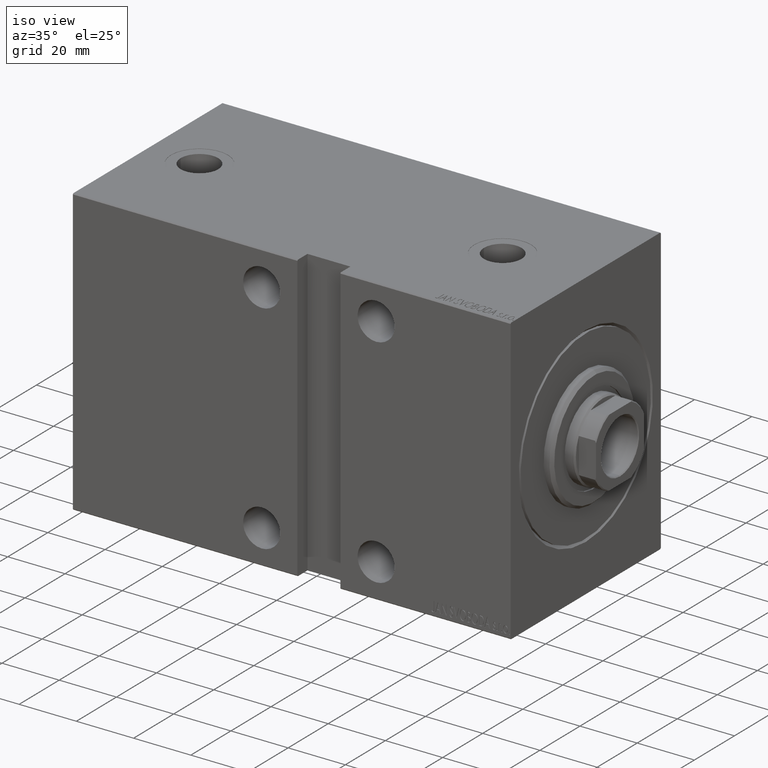
[diagram: clean part render]
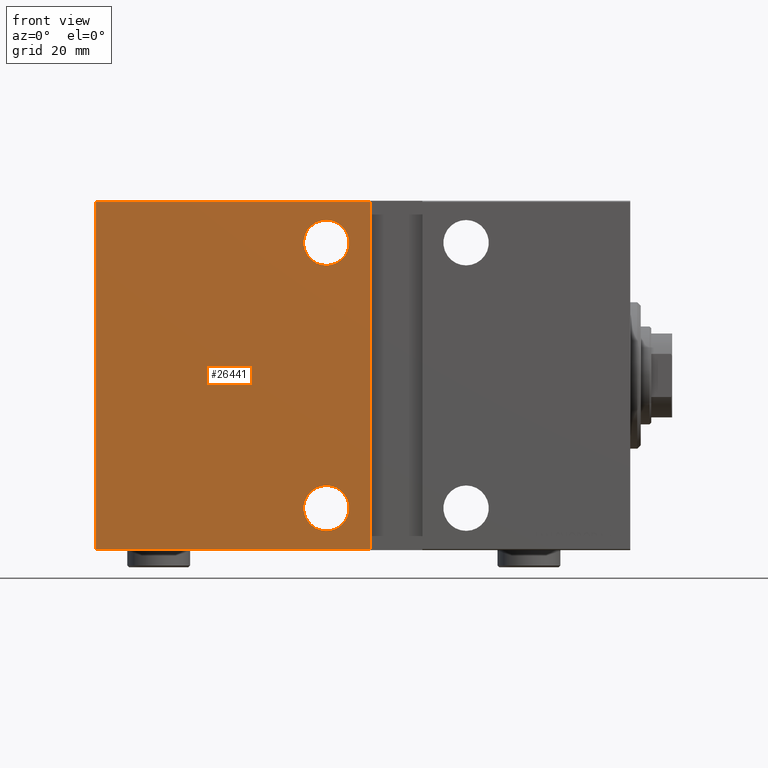
[diagram: tour spotlight — one face highlighted and labeled with its STEP entity id]
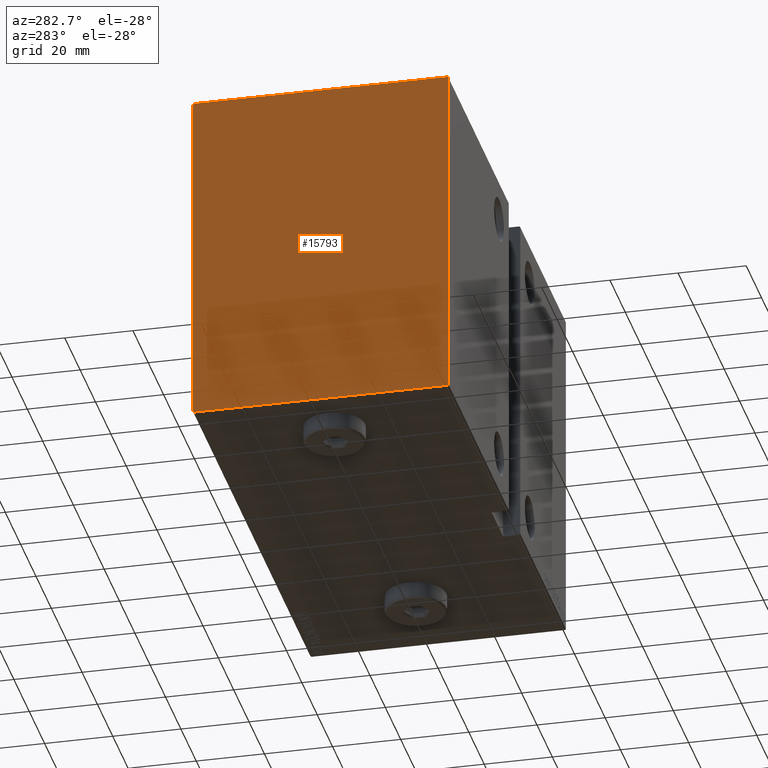
[diagram: tour spotlight — one face highlighted and labeled with its STEP entity id]
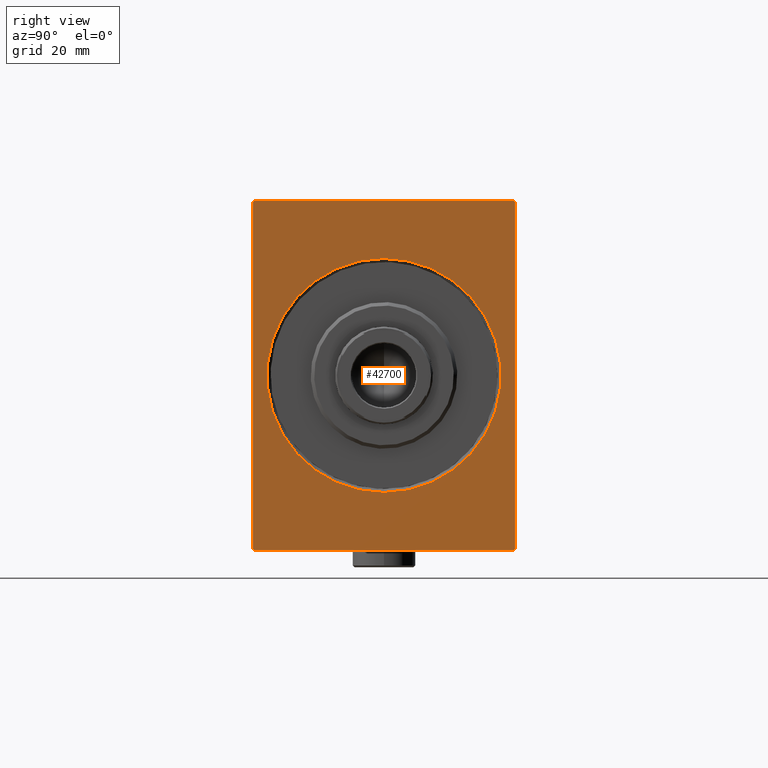
[diagram: tour spotlight — one face highlighted and labeled with its STEP entity id]
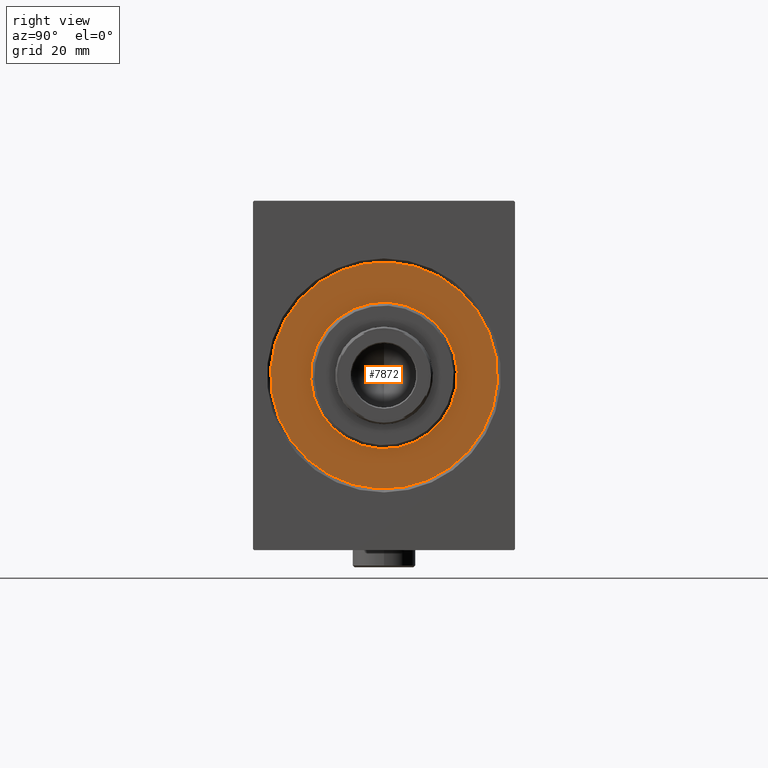
[diagram: tour spotlight — one face highlighted and labeled with its STEP entity id]
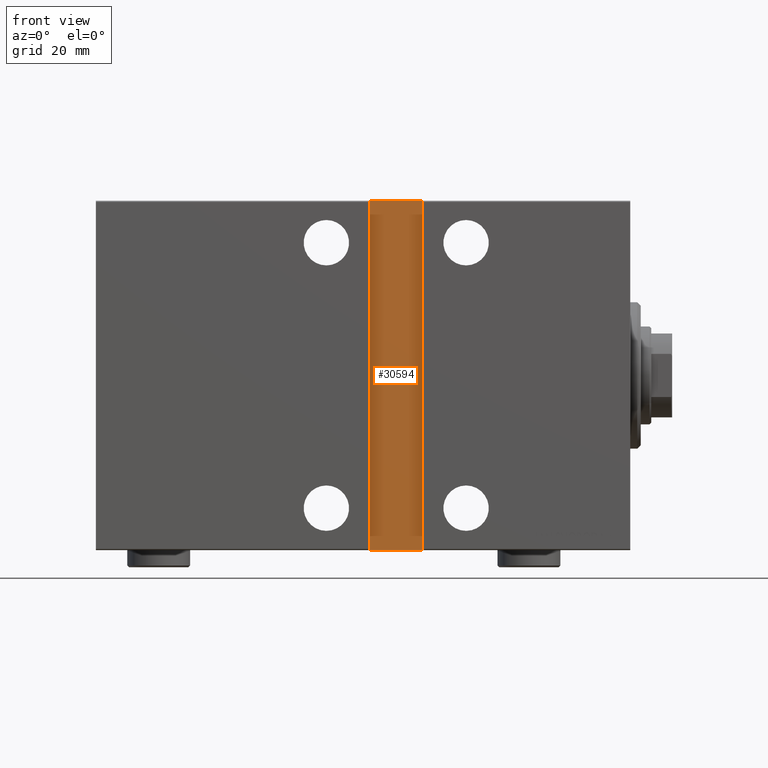
[diagram: tour spotlight — one face highlighted and labeled with its STEP entity id]
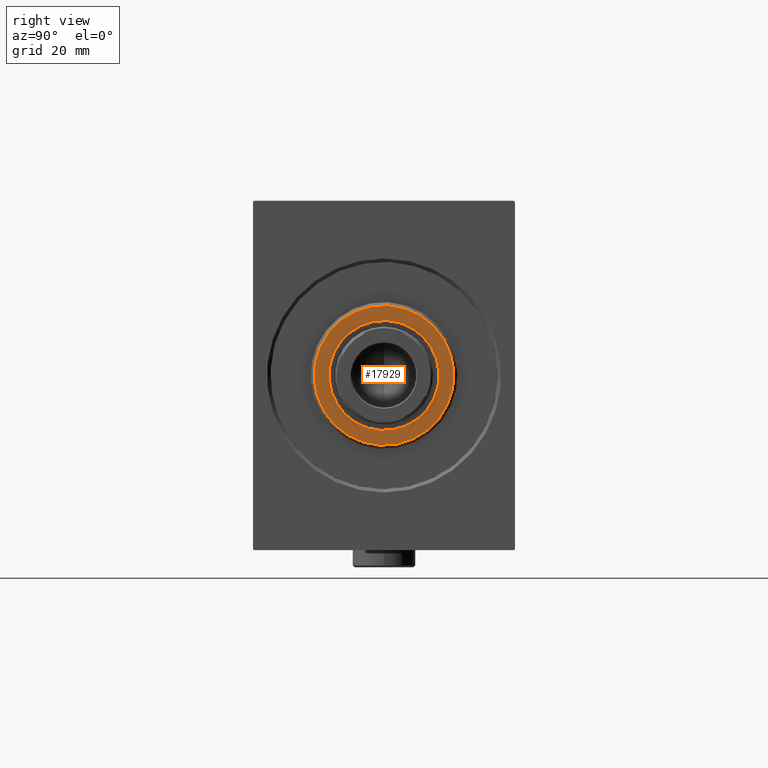
[diagram: tour spotlight — one face highlighted and labeled with its STEP entity id]
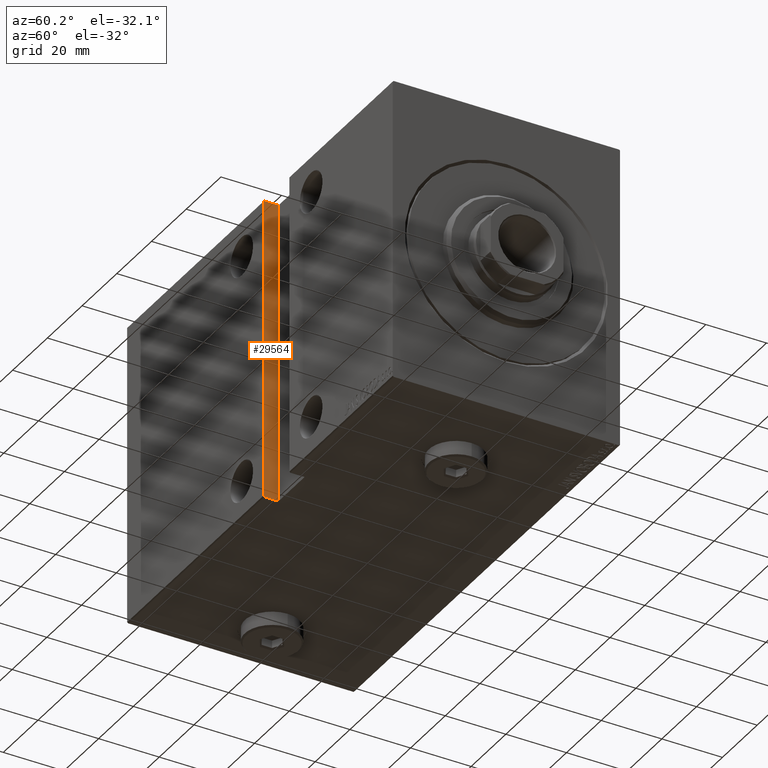
[diagram: tour spotlight — one face highlighted and labeled with its STEP entity id]
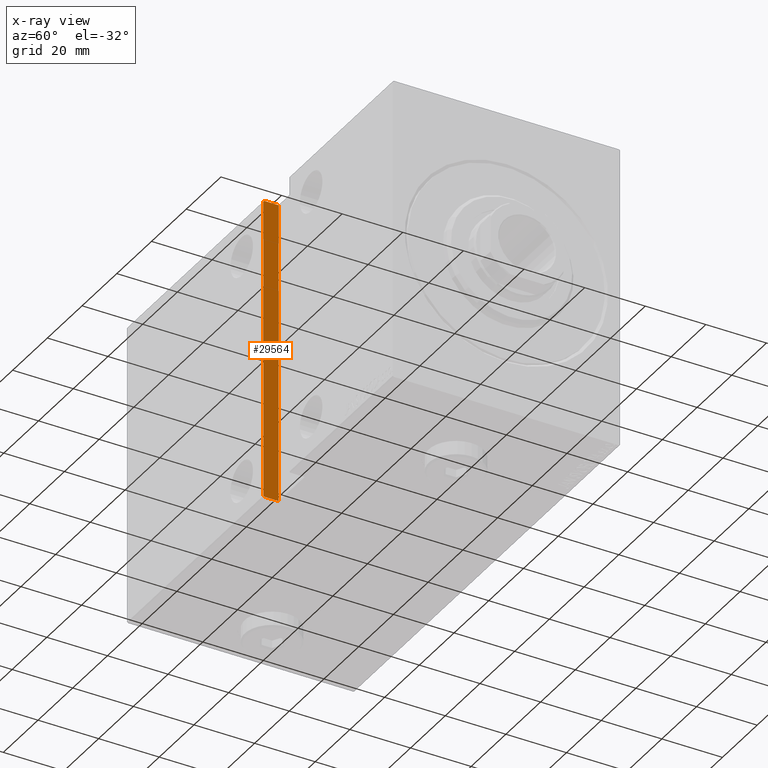
[diagram: x-ray of the same camera — body ghosted, this tour face saturated]
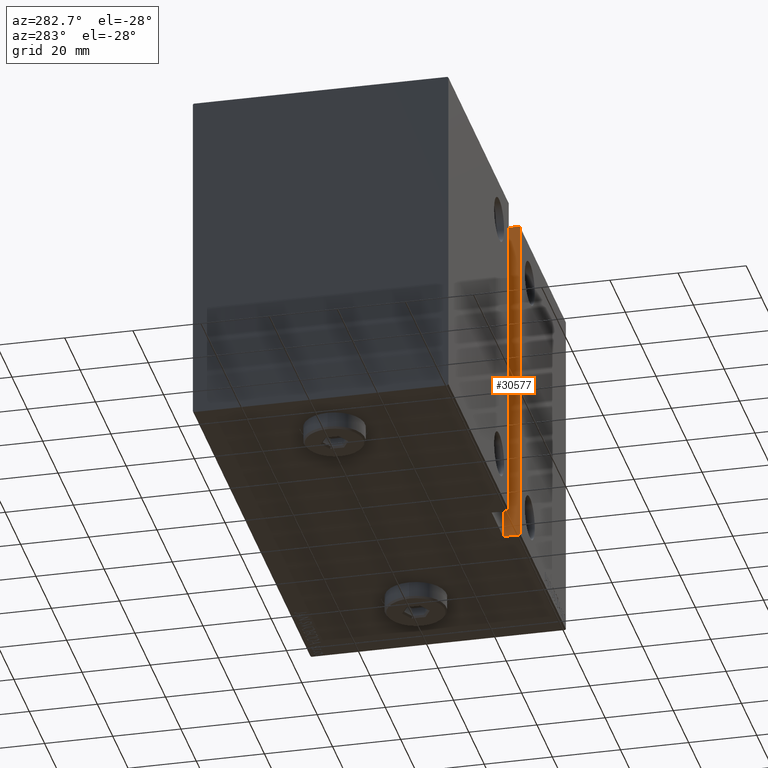
[diagram: tour spotlight — one face highlighted and labeled with its STEP entity id]
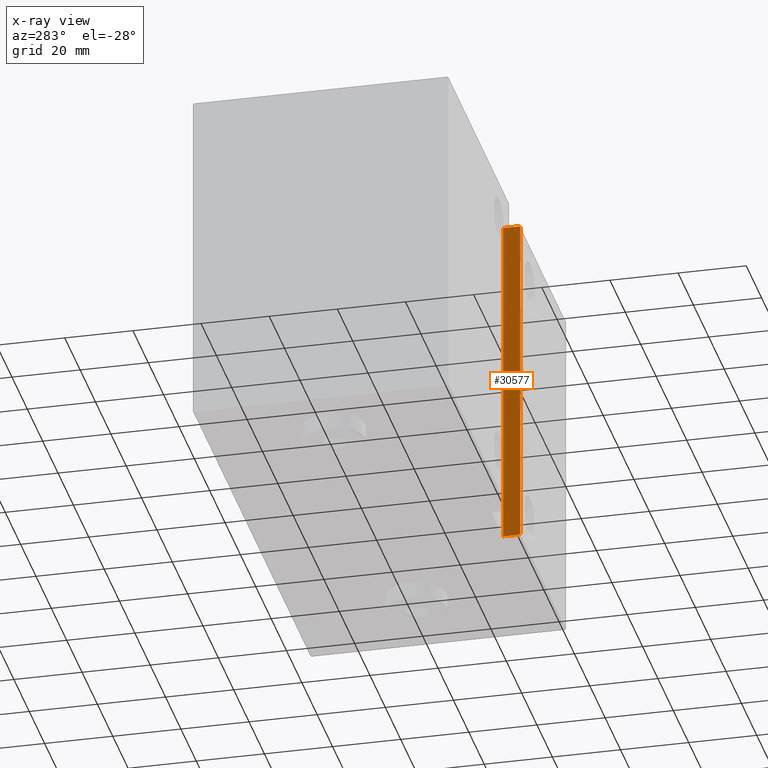
[diagram: x-ray of the same camera — body ghosted, this tour face saturated]
A machine part: a face-by-face anatomy tour. The part has 912 B-rep faces; the first image is the clean iso view, then the 8 largest visible faces are spotlighted one at a time (largest first), each with its STEP entity span.

Face 1 — front view, entity #26441. In plain terms, the highlighted planar face has unit normal (-0, 1, -0).
Definition (entity closure, byte-faithful):
#235 = DIRECTION ( 'NONE',  ( 0.000000000000000000, 1.000000000000000000, 0.000000000000000000 ) ) ;
#1767 = VERTEX_POINT ( 'NONE', #2426 ) ;
#2204 = DIRECTION ( 'NONE',  ( 0.000000000000000000, 1.387778780781445676E-16, -1.000000000000000000 ) ) ;
#2426 = CARTESIAN_POINT ( 'NONE',  ( 87.00000000000000000, 37.50000000000004263, 31.50000000000000000 ) ) ;
#3161 = DIRECTION ( 'NONE',  ( 0.000000000000000000, 0.000000000000000000, 1.000000000000000000 ) ) ;
#3342 = CIRCLE ( 'NONE', #43357, 6.500000000000005329 ) ;
#3765 = VERTEX_POINT ( 'NONE', #21574 ) ;
#4729 = CARTESIAN_POINT ( 'NONE',  ( 87.00000000000000000, 37.50000000000004263, -31.49999999999998579 ) ) ;
#4821 = DIRECTION ( 'NONE',  ( -1.000000000000000000, 0.000000000000000000, 0.000000000000000000 ) ) ;
#5173 = ORIENTED_EDGE ( 'NONE', *, *, #12529, .F. ) ;
#5368 = VECTOR ( 'NONE', #34100, 1000.000000000000000 ) ;
#5575 = CARTESIAN_POINT ( 'NONE',  ( 153.0000000000000000, 37.50000000000002132, -50.00000000000000000 ) ) ;
#5718 = EDGE_CURVE ( 'NONE', #19455, #3765, #37118, .T. ) ;
#7052 = EDGE_CURVE ( 'NONE', #15029, #34014, #26712, .T. ) ;
#9425 = EDGE_CURVE ( 'NONE', #15029, #3765, #16498, .T. ) ;
#9878 = EDGE_LOOP ( 'NONE', ( #5173, #30183 ) ) ;
#10892 = AXIS2_PLACEMENT_3D ( 'NONE', #41508, #235, #3161 ) ;
#11639 = AXIS2_PLACEMENT_3D ( 'NONE', #22802, #40082, #22355 ) ;
#11688 = EDGE_LOOP ( 'NONE', ( #43781, #23371 ) ) ;
#12323 = FACE_OUTER_BOUND ( 'NONE', #31589, .T. ) ;
#12529 = EDGE_CURVE ( 'NONE', #17453, #1767, #19422, .T. ) ;
#14060 = CARTESIAN_POINT ( 'NONE',  ( 74.50000000000002842, 37.50000000000001421, 49.70000000000003837 ) ) ;
#14303 = EDGE_CURVE ( 'NONE', #24757, #15332, #24476, .T. ) ;
#14711 = EDGE_CURVE ( 'NONE', #15332, #24757, #30938, .T. ) ;
#15029 = VERTEX_POINT ( 'NONE', #14060 ) ;
#15332 = VERTEX_POINT ( 'NONE', #4729 ) ;
#15681 = FACE_BOUND ( 'NONE', #9878, .T. ) ;
#16498 = LINE ( 'NONE', #20747, #25480 ) ;
#17282 = AXIS2_PLACEMENT_3D ( 'NONE', #24250, #23806, #26957 ) ;
#17453 = VERTEX_POINT ( 'NONE', #38107 ) ;
#18724 = CARTESIAN_POINT ( 'NONE',  ( 153.0000000000000000, 37.50000000000002132, -49.69999999999998153 ) ) ;
#19217 = DIRECTION ( 'NONE',  ( 0.000000000000000000, 0.000000000000000000, 1.000000000000000000 ) ) ;
#19265 = DIRECTION ( 'NONE',  ( 0.000000000000000000, -1.000000000000000000, -1.387778780781445676E-16 ) ) ;
#19422 = CIRCLE ( 'NONE', #17282, 6.500000000000005329 ) ;
#19455 = VERTEX_POINT ( 'NONE', #30441 ) ;
#19864 = DIRECTION ( 'NONE',  ( 0.000000000000000000, -1.387778780781445676E-16, 1.000000000000000000 ) ) ;
#20026 = ORIENTED_EDGE ( 'NONE', *, *, #5718, .F. ) ;
#20747 = CARTESIAN_POINT ( 'NONE',  ( 153.0000000000000000, 37.50000000000000711, 49.70000000000003837 ) ) ;
#21574 = CARTESIAN_POINT ( 'NONE',  ( 153.0000000000000000, 37.50000000000000711, 49.70000000000003837 ) ) ;
#21727 = CARTESIAN_POINT ( 'NONE',  ( 87.00000000000000000, 37.50000000000004263, -44.50000000000000000 ) ) ;
#22355 = DIRECTION ( 'NONE',  ( 0.000000000000000000, 0.000000000000000000, 1.000000000000000000 ) ) ;
#22444 = CARTESIAN_POINT ( 'NONE',  ( 74.50000000000001421, 37.50000000000001421, -49.69999999999998153 ) ) ;
#22617 = PLANE ( 'NONE',  #31130 ) ;
#22802 = CARTESIAN_POINT ( 'NONE',  ( 87.00000000000000000, 37.50000000000004263, -37.99999999999999289 ) ) ;
#23371 = ORIENTED_EDGE ( 'NONE', *, *, #14303, .F. ) ;
#23806 = DIRECTION ( 'NONE',  ( 0.000000000000000000, 1.000000000000000000, 0.000000000000000000 ) ) ;
#24141 = ORIENTED_EDGE ( 'NONE', *, *, #9425, .T. ) ;
#24250 = CARTESIAN_POINT ( 'NONE',  ( 87.00000000000000000, 37.50000000000004263, 38.00000000000000711 ) ) ;
#24476 = CIRCLE ( 'NONE', #10892, 6.500000000000005329 ) ;
#24757 = VERTEX_POINT ( 'NONE', #21727 ) ;
#25480 = VECTOR ( 'NONE', #44304, 1000.000000000000000 ) ;
#26441 = ADVANCED_FACE ( 'NONE', ( #36518, #15681, #12323 ), #22617, .F. ) ;
#26712 = LINE ( 'NONE', #40175, #5368 ) ;
#26817 = VECTOR ( 'NONE', #19864, 1000.000000000000000 ) ;
#26957 = DIRECTION ( 'NONE',  ( 0.000000000000000000, 0.000000000000000000, 1.000000000000000000 ) ) ;
#27180 = EDGE_CURVE ( 'NONE', #19455, #34014, #31962, .T. ) ;
#27469 = CARTESIAN_POINT ( 'NONE',  ( 153.0000000000000000, 37.50000000000002132, -50.00000000000000000 ) ) ;
#29743 = CARTESIAN_POINT ( 'NONE',  ( 87.00000000000000000, 37.50000000000004263, 38.00000000000000711 ) ) ;
#30183 = ORIENTED_EDGE ( 'NONE', *, *, #30541, .F. ) ;
#30441 = CARTESIAN_POINT ( 'NONE',  ( 153.0000000000000000, 37.50000000000002132, -49.69999999999998153 ) ) ;
#30541 = EDGE_CURVE ( 'NONE', #1767, #17453, #3342, .T. ) ;
#30864 = ORIENTED_EDGE ( 'NONE', *, *, #7052, .F. ) ;
#30938 = CIRCLE ( 'NONE', #11639, 6.500000000000005329 ) ;
#31130 = AXIS2_PLACEMENT_3D ( 'NONE', #5575, #19265, #2204 ) ;
#31589 = EDGE_LOOP ( 'NONE', ( #20026, #41612, #30864, #24141 ) ) ;
#31962 = LINE ( 'NONE', #18724, #43363 ) ;
#34014 = VERTEX_POINT ( 'NONE', #22444 ) ;
#34100 = DIRECTION ( 'NONE',  ( -1.387778780781445676E-16, 0.000000000000000000, -1.000000000000000000 ) ) ;
#35812 = DIRECTION ( 'NONE',  ( 0.000000000000000000, 1.000000000000000000, 0.000000000000000000 ) ) ;
#36518 = FACE_BOUND ( 'NONE', #11688, .T. ) ;
#37118 = LINE ( 'NONE', #27469, #26817 ) ;
#38107 = CARTESIAN_POINT ( 'NONE',  ( 87.00000000000000000, 37.50000000000004263, 44.50000000000001421 ) ) ;
#40082 = DIRECTION ( 'NONE',  ( 0.000000000000000000, 1.000000000000000000, 0.000000000000000000 ) ) ;
#40175 = CARTESIAN_POINT ( 'NONE',  ( 74.50000000000002842, 37.50000000000001421, 50.00000000000000000 ) ) ;
#41508 = CARTESIAN_POINT ( 'NONE',  ( 87.00000000000000000, 37.50000000000004263, -37.99999999999999289 ) ) ;
#41612 = ORIENTED_EDGE ( 'NONE', *, *, #27180, .T. ) ;
#43357 = AXIS2_PLACEMENT_3D ( 'NONE', #29743, #35812, #19217 ) ;
#43363 = VECTOR ( 'NONE', #4821, 1000.000000000000000 ) ;
#43781 = ORIENTED_EDGE ( 'NONE', *, *, #14711, .F. ) ;
#44304 = DIRECTION ( 'NONE',  ( 1.000000000000000000, 0.000000000000000000, 0.000000000000000000 ) ) ;

Face 2 — auxiliary view, entity #15793. In plain terms, the highlighted planar face has unit normal (-1, -0, 0).
Definition (entity closure, byte-faithful):
#973 = ORIENTED_EDGE ( 'NONE', *, *, #33320, .T. ) ;
#2558 = ORIENTED_EDGE ( 'NONE', *, *, #39098, .T. ) ;
#3020 = CARTESIAN_POINT ( 'NONE',  ( 153.0000000000000000, -37.19999999999996732, -50.00000000000000000 ) ) ;
#3189 = ORIENTED_EDGE ( 'NONE', *, *, #41125, .T. ) ;
#3362 = VECTOR ( 'NONE', #14427, 1000.000000000000114 ) ;
#3765 = VERTEX_POINT ( 'NONE', #21574 ) ;
#3927 = LINE ( 'NONE', #4820, #10686 ) ;
#4820 = CARTESIAN_POINT ( 'NONE',  ( 153.0000000000000000, 37.50000000000000711, 50.00000000000000000 ) ) ;
#5288 = DIRECTION ( 'NONE',  ( 0.000000000000000000, 1.000000000000000000, 0.000000000000000000 ) ) ;
#5445 = VECTOR ( 'NONE', #5288, 1000.000000000000000 ) ;
#5718 = EDGE_CURVE ( 'NONE', #19455, #3765, #37118, .T. ) ;
#6320 = DIRECTION ( 'NONE',  ( -0.000000000000000000, 0.7071067811865474617, 0.7071067811865474617 ) ) ;
#6764 = LINE ( 'NONE', #37255, #36460 ) ;
#7450 = EDGE_LOOP ( 'NONE', ( #973, #15769, #9357, #25147, #3189, #25135, #2558, #39485 ) ) ;
#7930 = VERTEX_POINT ( 'NONE', #13719 ) ;
#8178 = CARTESIAN_POINT ( 'NONE',  ( 153.0000000000000000, -37.49999999999999289, 49.69999999999998153 ) ) ;
#8455 = LINE ( 'NONE', #29070, #5445 ) ;
#9082 = VECTOR ( 'NONE', #37076, 1000.000000000000114 ) ;
#9357 = ORIENTED_EDGE ( 'NONE', *, *, #5718, .T. ) ;
#9468 = CARTESIAN_POINT ( 'NONE',  ( 153.0000000000000000, 43.60000000000000142, -43.60000000000000142 ) ) ;
#9469 = DIRECTION ( 'NONE',  ( -0.000000000000000000, -0.7071067811865802133, 0.7071067811865149322 ) ) ;
#10514 = CARTESIAN_POINT ( 'NONE',  ( 153.0000000000000000, -37.49999999999999289, -49.69999999999998153 ) ) ;
#10686 = VECTOR ( 'NONE', #17624, 1000.000000000000000 ) ;
#11421 = CARTESIAN_POINT ( 'NONE',  ( 153.0000000000000000, -37.49999999999999289, 50.00000000000000000 ) ) ;
#11565 = AXIS2_PLACEMENT_3D ( 'NONE', #31084, #20562, #44122 ) ;
#13402 = PLANE ( 'NONE',  #11565 ) ;
#13719 = CARTESIAN_POINT ( 'NONE',  ( 153.0000000000000000, 37.19999999999999574, -50.00000000000000000 ) ) ;
#14427 = DIRECTION ( 'NONE',  ( -0.000000000000000000, 0.7071067811865474617, -0.7071067811865474617 ) ) ;
#15769 = ORIENTED_EDGE ( 'NONE', *, *, #40961, .T. ) ;
#15793 = ADVANCED_FACE ( 'NONE', ( #44336 ), #13402, .T. ) ;
#17624 = DIRECTION ( 'NONE',  ( 0.000000000000000000, -1.000000000000000000, 0.000000000000000000 ) ) ;
#17953 = CARTESIAN_POINT ( 'NONE',  ( 153.0000000000000000, -37.19999999999996732, 50.00000000000000000 ) ) ;
#19455 = VERTEX_POINT ( 'NONE', #30441 ) ;
#19679 = VERTEX_POINT ( 'NONE', #3020 ) ;
#19864 = DIRECTION ( 'NONE',  ( 0.000000000000000000, -1.387778780781445676E-16, 1.000000000000000000 ) ) ;
#20562 = DIRECTION ( 'NONE',  ( 1.000000000000000000, 0.000000000000000000, 0.000000000000000000 ) ) ;
#20714 = VERTEX_POINT ( 'NONE', #8178 ) ;
#21574 = CARTESIAN_POINT ( 'NONE',  ( 153.0000000000000000, 37.50000000000000711, 49.70000000000003837 ) ) ;
#21776 = VERTEX_POINT ( 'NONE', #10514 ) ;
#23476 = VECTOR ( 'NONE', #36272, 1000.000000000000000 ) ;
#24982 = VECTOR ( 'NONE', #6320, 1000.000000000000114 ) ;
#25135 = ORIENTED_EDGE ( 'NONE', *, *, #34620, .T. ) ;
#25147 = ORIENTED_EDGE ( 'NONE', *, *, #42629, .T. ) ;
#26290 = LINE ( 'NONE', #9468, #24982 ) ;
#26817 = VECTOR ( 'NONE', #19864, 1000.000000000000000 ) ;
#27469 = CARTESIAN_POINT ( 'NONE',  ( 153.0000000000000000, 37.50000000000002132, -50.00000000000000000 ) ) ;
#28273 = VERTEX_POINT ( 'NONE', #44113 ) ;
#29070 = CARTESIAN_POINT ( 'NONE',  ( 153.0000000000000000, -37.49999999999999289, -50.00000000000000000 ) ) ;
#30096 = VERTEX_POINT ( 'NONE', #17953 ) ;
#30350 = CARTESIAN_POINT ( 'NONE',  ( 153.0000000000000000, -43.59999999999998721, 43.59999999999998721 ) ) ;
#30441 = CARTESIAN_POINT ( 'NONE',  ( 153.0000000000000000, 37.50000000000002132, -49.69999999999998153 ) ) ;
#30576 = LINE ( 'NONE', #31458, #3362 ) ;
#31084 = CARTESIAN_POINT ( 'NONE',  ( 153.0000000000000000, 0.000000000000000000, 0.000000000000000000 ) ) ;
#31458 = CARTESIAN_POINT ( 'NONE',  ( 153.0000000000000000, -43.59999999999998721, -43.59999999999998721 ) ) ;
#33320 = EDGE_CURVE ( 'NONE', #19679, #7930, #8455, .T. ) ;
#33493 = LINE ( 'NONE', #30350, #9082 ) ;
#34620 = EDGE_CURVE ( 'NONE', #30096, #20714, #33493, .T. ) ;
#36052 = LINE ( 'NONE', #11421, #23476 ) ;
#36272 = DIRECTION ( 'NONE',  ( 0.000000000000000000, 0.000000000000000000, -1.000000000000000000 ) ) ;
#36305 = EDGE_CURVE ( 'NONE', #21776, #19679, #30576, .T. ) ;
#36460 = VECTOR ( 'NONE', #9469, 999.9999999999998863 ) ;
#37076 = DIRECTION ( 'NONE',  ( 0.000000000000000000, -0.7071067811865474617, -0.7071067811865474617 ) ) ;
#37118 = LINE ( 'NONE', #27469, #26817 ) ;
#37255 = CARTESIAN_POINT ( 'NONE',  ( 153.0000000000000000, 43.59999999999828901, 43.60000000000231779 ) ) ;
#39098 = EDGE_CURVE ( 'NONE', #20714, #21776, #36052, .T. ) ;
#39485 = ORIENTED_EDGE ( 'NONE', *, *, #36305, .T. ) ;
#40961 = EDGE_CURVE ( 'NONE', #7930, #19455, #26290, .T. ) ;
#41125 = EDGE_CURVE ( 'NONE', #28273, #30096, #3927, .T. ) ;
#42629 = EDGE_CURVE ( 'NONE', #3765, #28273, #6764, .T. ) ;
#44113 = CARTESIAN_POINT ( 'NONE',  ( 153.0000000000000000, 37.20000000000000995, 50.00000000000000000 ) ) ;
#44122 = DIRECTION ( 'NONE',  ( 0.000000000000000000, 0.000000000000000000, -1.000000000000000000 ) ) ;
#44336 = FACE_OUTER_BOUND ( 'NONE', #7450, .T. ) ;

Face 3 — right view, entity #42700. In plain terms, the highlighted planar face has unit normal (-1, -0, 0).
Definition (entity closure, byte-faithful):
#247 = EDGE_CURVE ( 'NONE', #32147, #7434, #18801, .T. ) ;
#928 = CARTESIAN_POINT ( 'NONE',  ( 0.000000000000000000, 37.20000000000000995, 50.00000000000000000 ) ) ;
#1451 = CARTESIAN_POINT ( 'NONE',  ( 0.000000000000000000, 4.102566777143633774E-15, -33.50000000000000000 ) ) ;
#2364 = DIRECTION ( 'NONE',  ( 0.000000000000000000, -1.000000000000000000, 0.000000000000000000 ) ) ;
#2584 = DIRECTION ( 'NONE',  ( -0.000000000000000000, 0.7071067811865474617, 0.7071067811865474617 ) ) ;
#3744 = DIRECTION ( 'NONE',  ( 0.000000000000000000, -0.7071067811865474617, -0.7071067811865474617 ) ) ;
#4470 = VECTOR ( 'NONE', #3744, 1000.000000000000114 ) ;
#4723 = EDGE_CURVE ( 'NONE', #22254, #9776, #43759, .T. ) ;
#5400 = DIRECTION ( 'NONE',  ( 0.000000000000000000, 0.000000000000000000, -1.000000000000000000 ) ) ;
#5424 = VECTOR ( 'NONE', #31140, 1000.000000000000000 ) ;
#5453 = DIRECTION ( 'NONE',  ( 1.000000000000000000, 0.000000000000000000, 0.000000000000000000 ) ) ;
#5707 = EDGE_CURVE ( 'NONE', #22212, #8717, #19636, .T. ) ;
#6432 = DIRECTION ( 'NONE',  ( 0.000000000000000000, 0.000000000000000000, -1.000000000000000000 ) ) ;
#6495 = LINE ( 'NONE', #30913, #5424 ) ;
#7434 = VERTEX_POINT ( 'NONE', #1451 ) ;
#7559 = ORIENTED_EDGE ( 'NONE', *, *, #35184, .F. ) ;
#8717 = VERTEX_POINT ( 'NONE', #40604 ) ;
#9002 = CARTESIAN_POINT ( 'NONE',  ( 0.000000000000000000, -37.49999999999999289, 50.00000000000000000 ) ) ;
#9617 = LINE ( 'NONE', #13864, #4470 ) ;
#9776 = VERTEX_POINT ( 'NONE', #20421 ) ;
#10370 = VECTOR ( 'NONE', #5400, 1000.000000000000000 ) ;
#10884 = CARTESIAN_POINT ( 'NONE',  ( 0.000000000000000000, 37.50000000000002132, -50.00000000000000000 ) ) ;
#11710 = VERTEX_POINT ( 'NONE', #27439 ) ;
#12019 = VERTEX_POINT ( 'NONE', #14992 ) ;
#12644 = CARTESIAN_POINT ( 'NONE',  ( 0.000000000000000000, 0.000000000000000000, 0.000000000000000000 ) ) ;
#12729 = FACE_OUTER_BOUND ( 'NONE', #32396, .T. ) ;
#12855 = CARTESIAN_POINT ( 'NONE',  ( 0.000000000000000000, -37.49999999999999289, 49.69999999999998153 ) ) ;
#12923 = CARTESIAN_POINT ( 'NONE',  ( 0.000000000000000000, 37.50000000000000711, 50.00000000000000000 ) ) ;
#13169 = PLANE ( 'NONE',  #17251 ) ;
#13502 = ORIENTED_EDGE ( 'NONE', *, *, #33622, .F. ) ;
#13864 = CARTESIAN_POINT ( 'NONE',  ( 0.000000000000000000, 37.50000000000002132, -49.69999999999998153 ) ) ;
#13965 = CARTESIAN_POINT ( 'NONE',  ( 0.000000000000000000, -37.19999999999996732, -50.00000000000000000 ) ) ;
#14029 = LINE ( 'NONE', #10884, #41984 ) ;
#14849 = LINE ( 'NONE', #928, #32353 ) ;
#14992 = CARTESIAN_POINT ( 'NONE',  ( 0.000000000000000000, 37.20000000000000995, 50.00000000000000000 ) ) ;
#17182 = EDGE_CURVE ( 'NONE', #12019, #34679, #14849, .T. ) ;
#17251 = AXIS2_PLACEMENT_3D ( 'NONE', #20113, #23022, #6432 ) ;
#17766 = DIRECTION ( 'NONE',  ( -0.000000000000000000, 0.7071067811865802133, -0.7071067811865149322 ) ) ;
#18218 = VECTOR ( 'NONE', #2584, 1000.000000000000114 ) ;
#18650 = EDGE_CURVE ( 'NONE', #28735, #11710, #9617, .T. ) ;
#18801 = CIRCLE ( 'NONE', #35970, 33.50000000000000000 ) ;
#19449 = FACE_BOUND ( 'NONE', #29107, .T. ) ;
#19636 = LINE ( 'NONE', #33313, #18218 ) ;
#20113 = CARTESIAN_POINT ( 'NONE',  ( 0.000000000000000000, 0.000000000000000000, 0.000000000000000000 ) ) ;
#20421 = CARTESIAN_POINT ( 'NONE',  ( 0.000000000000000000, -37.49999999999999289, -49.69999999999998153 ) ) ;
#21891 = DIRECTION ( 'NONE',  ( 1.000000000000000000, 0.000000000000000000, 0.000000000000000000 ) ) ;
#22212 = VERTEX_POINT ( 'NONE', #12855 ) ;
#22254 = VERTEX_POINT ( 'NONE', #13965 ) ;
#23022 = DIRECTION ( 'NONE',  ( 1.000000000000000000, 0.000000000000000000, 0.000000000000000000 ) ) ;
#23346 = DIRECTION ( 'NONE',  ( -0.000000000000000000, -0.7071067811865474617, 0.7071067811865474617 ) ) ;
#23566 = CARTESIAN_POINT ( 'NONE',  ( 0.000000000000000000, -37.19999999999996732, -50.00000000000000000 ) ) ;
#23685 = ORIENTED_EDGE ( 'NONE', *, *, #4723, .T. ) ;
#25256 = CARTESIAN_POINT ( 'NONE',  ( 0.000000000000000000, 0.000000000000000000, 0.000000000000000000 ) ) ;
#25315 = EDGE_CURVE ( 'NONE', #22212, #9776, #42423, .T. ) ;
#26420 = AXIS2_PLACEMENT_3D ( 'NONE', #25256, #21891, #35578 ) ;
#26509 = CARTESIAN_POINT ( 'NONE',  ( 0.000000000000000000, 0.000000000000000000, 33.50000000000000000 ) ) ;
#26593 = LINE ( 'NONE', #12923, #36276 ) ;
#27439 = CARTESIAN_POINT ( 'NONE',  ( 0.000000000000000000, 37.19999999999999574, -50.00000000000000000 ) ) ;
#28561 = CIRCLE ( 'NONE', #26420, 33.50000000000000000 ) ;
#28735 = VERTEX_POINT ( 'NONE', #39034 ) ;
#28949 = EDGE_CURVE ( 'NONE', #22254, #11710, #6495, .T. ) ;
#29107 = EDGE_LOOP ( 'NONE', ( #38714, #33994 ) ) ;
#30913 = CARTESIAN_POINT ( 'NONE',  ( 0.000000000000000000, -37.49999999999999289, -50.00000000000000000 ) ) ;
#31140 = DIRECTION ( 'NONE',  ( 0.000000000000000000, 1.000000000000000000, 0.000000000000000000 ) ) ;
#31673 = ORIENTED_EDGE ( 'NONE', *, *, #17182, .T. ) ;
#32147 = VERTEX_POINT ( 'NONE', #26509 ) ;
#32353 = VECTOR ( 'NONE', #17766, 999.9999999999998863 ) ;
#32396 = EDGE_LOOP ( 'NONE', ( #7559, #31673, #13502, #44009, #38394, #23685, #43556, #32470 ) ) ;
#32470 = ORIENTED_EDGE ( 'NONE', *, *, #5707, .T. ) ;
#33253 = DIRECTION ( 'NONE',  ( 0.000000000000000000, 0.000000000000000000, -1.000000000000000000 ) ) ;
#33313 = CARTESIAN_POINT ( 'NONE',  ( 0.000000000000000000, -37.49999999999999289, 49.69999999999998153 ) ) ;
#33622 = EDGE_CURVE ( 'NONE', #28735, #34679, #14029, .T. ) ;
#33994 = ORIENTED_EDGE ( 'NONE', *, *, #40568, .T. ) ;
#34679 = VERTEX_POINT ( 'NONE', #40676 ) ;
#35184 = EDGE_CURVE ( 'NONE', #12019, #8717, #26593, .T. ) ;
#35578 = DIRECTION ( 'NONE',  ( 0.000000000000000000, 0.000000000000000000, -1.000000000000000000 ) ) ;
#35970 = AXIS2_PLACEMENT_3D ( 'NONE', #12644, #5453, #33253 ) ;
#36276 = VECTOR ( 'NONE', #2364, 1000.000000000000000 ) ;
#37565 = DIRECTION ( 'NONE',  ( 0.000000000000000000, -1.387778780781445676E-16, 1.000000000000000000 ) ) ;
#38394 = ORIENTED_EDGE ( 'NONE', *, *, #28949, .F. ) ;
#38714 = ORIENTED_EDGE ( 'NONE', *, *, #247, .T. ) ;
#39034 = CARTESIAN_POINT ( 'NONE',  ( 0.000000000000000000, 37.50000000000002132, -49.69999999999998153 ) ) ;
#40568 = EDGE_CURVE ( 'NONE', #7434, #32147, #28561, .T. ) ;
#40604 = CARTESIAN_POINT ( 'NONE',  ( 0.000000000000000000, -37.19999999999996732, 50.00000000000000000 ) ) ;
#40676 = CARTESIAN_POINT ( 'NONE',  ( 0.000000000000000000, 37.50000000000000711, 49.70000000000003837 ) ) ;
#41984 = VECTOR ( 'NONE', #37565, 1000.000000000000000 ) ;
#42423 = LINE ( 'NONE', #9002, #10370 ) ;
#42700 = ADVANCED_FACE ( 'NONE', ( #19449, #12729 ), #13169, .F. ) ;
#43245 = VECTOR ( 'NONE', #23346, 1000.000000000000114 ) ;
#43556 = ORIENTED_EDGE ( 'NONE', *, *, #25315, .F. ) ;
#43759 = LINE ( 'NONE', #23566, #43245 ) ;
#44009 = ORIENTED_EDGE ( 'NONE', *, *, #18650, .T. ) ;

Face 4 — right view, entity #7872. In plain terms, the highlighted planar face has unit normal (-1, 0, 0).
Definition (entity closure, byte-faithful):
#498 = EDGE_CURVE ( 'NONE', #5314, #14985, #8066, .T. ) ;
#526 = DIRECTION ( 'NONE',  ( 0.000000000000000000, 0.000000000000000000, 1.000000000000000000 ) ) ;
#2716 = CARTESIAN_POINT ( 'NONE',  ( 0.000000000000000000, 0.000000000000000000, 0.000000000000000000 ) ) ;
#4110 = EDGE_LOOP ( 'NONE', ( #11994, #19603 ) ) ;
#4903 = VERTEX_POINT ( 'NONE', #22628 ) ;
#5314 = VERTEX_POINT ( 'NONE', #32893 ) ;
#6111 = VERTEX_POINT ( 'NONE', #28022 ) ;
#7872 = ADVANCED_FACE ( 'NONE', ( #23795, #37476 ), #26946, .F. ) ;
#8066 = CIRCLE ( 'NONE', #40308, 32.50000000000000000 ) ;
#9666 = DIRECTION ( 'NONE',  ( 0.000000000000000000, 0.000000000000000000, -1.000000000000000000 ) ) ;
#9912 = DIRECTION ( 'NONE',  ( -1.000000000000000000, 0.000000000000000000, 0.000000000000000000 ) ) ;
#10539 = DIRECTION ( 'NONE',  ( -1.000000000000000000, 0.000000000000000000, 0.000000000000000000 ) ) ;
#11994 = ORIENTED_EDGE ( 'NONE', *, *, #498, .F. ) ;
#14985 = VERTEX_POINT ( 'NONE', #44330 ) ;
#16093 = AXIS2_PLACEMENT_3D ( 'NONE', #2716, #9912, #30528 ) ;
#17804 = DIRECTION ( 'NONE',  ( -1.000000000000000000, 0.000000000000000000, 0.000000000000000000 ) ) ;
#17808 = DIRECTION ( 'NONE',  ( 0.000000000000000000, 0.000000000000000000, -1.000000000000000000 ) ) ;
#19603 = ORIENTED_EDGE ( 'NONE', *, *, #38323, .F. ) ;
#19749 = CARTESIAN_POINT ( 'NONE',  ( 0.000000000000000000, 0.000000000000000000, 0.000000000000000000 ) ) ;
#21388 = DIRECTION ( 'NONE',  ( 1.000000000000000000, -0.000000000000000000, 0.000000000000000000 ) ) ;
#22511 = EDGE_CURVE ( 'NONE', #6111, #4903, #39651, .T. ) ;
#22628 = CARTESIAN_POINT ( 'NONE',  ( 0.000000000000000000, 2.571758278209441661E-15, -21.00000000000000000 ) ) ;
#22960 = EDGE_LOOP ( 'NONE', ( #44129, #31801 ) ) ;
#23795 = FACE_BOUND ( 'NONE', #22960, .T. ) ;
#24304 = CARTESIAN_POINT ( 'NONE',  ( 0.000000000000000000, 0.000000000000000000, 0.000000000000000000 ) ) ;
#26946 = PLANE ( 'NONE',  #16093 ) ;
#28022 = CARTESIAN_POINT ( 'NONE',  ( 0.000000000000000000, 0.000000000000000000, 21.00000000000000000 ) ) ;
#29550 = EDGE_CURVE ( 'NONE', #4903, #6111, #39142, .T. ) ;
#30528 = DIRECTION ( 'NONE',  ( 0.000000000000000000, 0.000000000000000000, 1.000000000000000000 ) ) ;
#30699 = CARTESIAN_POINT ( 'NONE',  ( 0.000000000000000000, 0.000000000000000000, 0.000000000000000000 ) ) ;
#31801 = ORIENTED_EDGE ( 'NONE', *, *, #29550, .F. ) ;
#32479 = AXIS2_PLACEMENT_3D ( 'NONE', #19749, #33426, #9666 ) ;
#32670 = AXIS2_PLACEMENT_3D ( 'NONE', #24304, #21388, #17808 ) ;
#32793 = CIRCLE ( 'NONE', #40681, 32.50000000000000000 ) ;
#32893 = CARTESIAN_POINT ( 'NONE',  ( 0.000000000000000000, 0.000000000000000000, -32.50000000000000000 ) ) ;
#33426 = DIRECTION ( 'NONE',  ( 1.000000000000000000, -0.000000000000000000, 0.000000000000000000 ) ) ;
#37476 = FACE_OUTER_BOUND ( 'NONE', #4110, .T. ) ;
#38323 = EDGE_CURVE ( 'NONE', #14985, #5314, #32793, .T. ) ;
#39142 = CIRCLE ( 'NONE', #32670, 21.00000000000000000 ) ;
#39651 = CIRCLE ( 'NONE', #32479, 21.00000000000000000 ) ;
#40308 = AXIS2_PLACEMENT_3D ( 'NONE', #30699, #10539, #40812 ) ;
#40681 = AXIS2_PLACEMENT_3D ( 'NONE', #42231, #17804, #526 ) ;
#40812 = DIRECTION ( 'NONE',  ( 0.000000000000000000, 0.000000000000000000, 1.000000000000000000 ) ) ;
#42231 = CARTESIAN_POINT ( 'NONE',  ( 0.000000000000000000, 0.000000000000000000, 0.000000000000000000 ) ) ;
#44129 = ORIENTED_EDGE ( 'NONE', *, *, #22511, .F. ) ;
#44330 = CARTESIAN_POINT ( 'NONE',  ( 0.000000000000000000, 3.980102097228898626E-15, 32.50000000000000000 ) ) ;

Face 5 — front view, entity #30594. In plain terms, the highlighted planar face has unit normal (0, -1, -0).
Definition (entity closure, byte-faithful):
#970 = ORIENTED_EDGE ( 'NONE', *, *, #42131, .T. ) ;
#1725 = DIRECTION ( 'NONE',  ( -0.000000000000000000, 1.000000000000000000, 0.000000000000000000 ) ) ;
#1904 = CARTESIAN_POINT ( 'NONE',  ( 59.50000000000001421, 32.50000000000001421, 50.00000000000000000 ) ) ;
#2790 = VERTEX_POINT ( 'NONE', #42166 ) ;
#3778 = ORIENTED_EDGE ( 'NONE', *, *, #10234, .F. ) ;
#5430 = VECTOR ( 'NONE', #43864, 1000.000000000000000 ) ;
#6444 = CARTESIAN_POINT ( 'NONE',  ( 74.50000000000002842, 32.50000000000001421, 50.00000000000000000 ) ) ;
#6839 = AXIS2_PLACEMENT_3D ( 'NONE', #22565, #1725, #15417 ) ;
#7265 = VERTEX_POINT ( 'NONE', #13824 ) ;
#10234 = EDGE_CURVE ( 'NONE', #42282, #2790, #24121, .T. ) ;
#11916 = ORIENTED_EDGE ( 'NONE', *, *, #39332, .T. ) ;
#13824 = CARTESIAN_POINT ( 'NONE',  ( 74.50000000000002842, 32.50000000000001421, 50.00000000000000000 ) ) ;
#15417 = DIRECTION ( 'NONE',  ( 0.000000000000000000, -0.000000000000000000, 1.000000000000000000 ) ) ;
#17166 = EDGE_CURVE ( 'NONE', #38065, #42282, #28068, .T. ) ;
#17184 = LINE ( 'NONE', #20987, #43644 ) ;
#17951 = ORIENTED_EDGE ( 'NONE', *, *, #17166, .F. ) ;
#18436 = CARTESIAN_POINT ( 'NONE',  ( 59.50000000000001421, 32.50000000000001421, 50.00000000000000000 ) ) ;
#18781 = FACE_OUTER_BOUND ( 'NONE', #32188, .T. ) ;
#19382 = CARTESIAN_POINT ( 'NONE',  ( 59.50000000000000711, 32.50000000000001421, -50.00000000000000000 ) ) ;
#20660 = VECTOR ( 'NONE', #36489, 1000.000000000000000 ) ;
#20987 = CARTESIAN_POINT ( 'NONE',  ( 59.50000000000001421, 32.50000000000001421, 50.00000000000000000 ) ) ;
#21596 = VECTOR ( 'NONE', #28948, 1000.000000000000000 ) ;
#22565 = CARTESIAN_POINT ( 'NONE',  ( 0.000000000000000000, 32.50000000000001421, 0.000000000000000000 ) ) ;
#24121 = LINE ( 'NONE', #37799, #5430 ) ;
#28068 = LINE ( 'NONE', #18436, #21596 ) ;
#28948 = DIRECTION ( 'NONE',  ( -6.938893903907228378E-17, 0.000000000000000000, -1.000000000000000000 ) ) ;
#30594 = ADVANCED_FACE ( 'NONE', ( #18781 ), #32451, .T. ) ;
#31300 = DIRECTION ( 'NONE',  ( 1.000000000000000000, 0.000000000000000000, 0.000000000000000000 ) ) ;
#32188 = EDGE_LOOP ( 'NONE', ( #3778, #17951, #970, #11916 ) ) ;
#32451 = PLANE ( 'NONE',  #6839 ) ;
#36489 = DIRECTION ( 'NONE',  ( -1.387778780781445676E-16, 0.000000000000000000, -1.000000000000000000 ) ) ;
#37159 = LINE ( 'NONE', #6444, #20660 ) ;
#37799 = CARTESIAN_POINT ( 'NONE',  ( 59.50000000000000711, 32.50000000000001421, -50.00000000000000000 ) ) ;
#38065 = VERTEX_POINT ( 'NONE', #1904 ) ;
#39332 = EDGE_CURVE ( 'NONE', #7265, #2790, #37159, .T. ) ;
#42131 = EDGE_CURVE ( 'NONE', #38065, #7265, #17184, .T. ) ;
#42166 = CARTESIAN_POINT ( 'NONE',  ( 74.50000000000002842, 32.50000000000001421, -50.00000000000000000 ) ) ;
#42282 = VERTEX_POINT ( 'NONE', #19382 ) ;
#43644 = VECTOR ( 'NONE', #31300, 1000.000000000000000 ) ;
#43864 = DIRECTION ( 'NONE',  ( 1.000000000000000000, 0.000000000000000000, 0.000000000000000000 ) ) ;

Face 6 — right view, entity #17929. In plain terms, the highlighted planar face has unit normal (1, -0, -0).
Definition (entity closure, byte-faithful):
#12 = CARTESIAN_POINT ( 'NONE',  ( 3.000000000000000000, 1.928818708657081344E-15, 15.75000000000000000 ) ) ;
#467 = DIRECTION ( 'NONE',  ( 0.000000000000000000, 0.000000000000000000, -1.000000000000000000 ) ) ;
#1551 = CIRCLE ( 'NONE', #29462, 15.75000000000000000 ) ;
#2749 = DIRECTION ( 'NONE',  ( 0.000000000000000000, 0.000000000000000000, -1.000000000000000000 ) ) ;
#3798 = DIRECTION ( 'NONE',  ( 0.000000000000000000, 0.000000000000000000, -1.000000000000000000 ) ) ;
#4289 = VERTEX_POINT ( 'NONE', #24173 ) ;
#5218 = EDGE_LOOP ( 'NONE', ( #34631, #8226 ) ) ;
#5387 = DIRECTION ( 'NONE',  ( 0.000000000000000000, 0.000000000000000000, -1.000000000000000000 ) ) ;
#6128 = PLANE ( 'NONE',  #33050 ) ;
#7396 = CARTESIAN_POINT ( 'NONE',  ( 3.000000000000000000, 0.000000000000000000, 0.000000000000000000 ) ) ;
#8226 = ORIENTED_EDGE ( 'NONE', *, *, #25522, .F. ) ;
#9382 = CIRCLE ( 'NONE', #38730, 19.99999999999998934 ) ;
#12088 = VERTEX_POINT ( 'NONE', #13399 ) ;
#12381 = VERTEX_POINT ( 'NONE', #18472 ) ;
#13399 = CARTESIAN_POINT ( 'NONE',  ( 3.000000000000000000, 0.000000000000000000, -15.75000000000000000 ) ) ;
#13955 = AXIS2_PLACEMENT_3D ( 'NONE', #7396, #21075, #3798 ) ;
#14300 = VERTEX_POINT ( 'NONE', #12 ) ;
#14343 = EDGE_CURVE ( 'NONE', #12381, #4289, #21634, .T. ) ;
#15778 = FACE_OUTER_BOUND ( 'NONE', #32807, .T. ) ;
#16744 = ORIENTED_EDGE ( 'NONE', *, *, #14343, .T. ) ;
#17476 = EDGE_CURVE ( 'NONE', #12088, #14300, #1551, .T. ) ;
#17929 = ADVANCED_FACE ( 'NONE', ( #15778, #40219 ), #6128, .T. ) ;
#18472 = CARTESIAN_POINT ( 'NONE',  ( 3.000000000000000000, 2.510525938252073693E-15, -19.99999999999998934 ) ) ;
#18641 = DIRECTION ( 'NONE',  ( 1.000000000000000000, -0.000000000000000000, 0.000000000000000000 ) ) ;
#19811 = CARTESIAN_POINT ( 'NONE',  ( 3.000000000000000000, 0.000000000000000000, 0.000000000000000000 ) ) ;
#21075 = DIRECTION ( 'NONE',  ( 1.000000000000000000, 0.000000000000000000, 0.000000000000000000 ) ) ;
#21634 = CIRCLE ( 'NONE', #27355, 19.99999999999998934 ) ;
#21991 = CARTESIAN_POINT ( 'NONE',  ( 3.000000000000000000, 0.000000000000000000, 0.000000000000000000 ) ) ;
#22111 = CARTESIAN_POINT ( 'NONE',  ( 3.000000000000000000, 0.000000000000000000, 0.000000000000000000 ) ) ;
#23794 = DIRECTION ( 'NONE',  ( 1.000000000000000000, -0.000000000000000000, 0.000000000000000000 ) ) ;
#24173 = CARTESIAN_POINT ( 'NONE',  ( 3.000000000000000000, 0.000000000000000000, 19.99999999999998934 ) ) ;
#25522 = EDGE_CURVE ( 'NONE', #14300, #12088, #27550, .T. ) ;
#27355 = AXIS2_PLACEMENT_3D ( 'NONE', #44216, #23794, #467 ) ;
#27550 = CIRCLE ( 'NONE', #13955, 15.75000000000000000 ) ;
#29462 = AXIS2_PLACEMENT_3D ( 'NONE', #22111, #39382, #31152 ) ;
#30689 = ORIENTED_EDGE ( 'NONE', *, *, #43548, .T. ) ;
#31152 = DIRECTION ( 'NONE',  ( 0.000000000000000000, 0.000000000000000000, -1.000000000000000000 ) ) ;
#32807 = EDGE_LOOP ( 'NONE', ( #30689, #16744 ) ) ;
#33050 = AXIS2_PLACEMENT_3D ( 'NONE', #19811, #33483, #2749 ) ;
#33483 = DIRECTION ( 'NONE',  ( 1.000000000000000000, -0.000000000000000000, 0.000000000000000000 ) ) ;
#34631 = ORIENTED_EDGE ( 'NONE', *, *, #17476, .F. ) ;
#38730 = AXIS2_PLACEMENT_3D ( 'NONE', #21991, #18641, #5387 ) ;
#39382 = DIRECTION ( 'NONE',  ( 1.000000000000000000, 0.000000000000000000, 0.000000000000000000 ) ) ;
#40219 = FACE_BOUND ( 'NONE', #5218, .T. ) ;
#43548 = EDGE_CURVE ( 'NONE', #4289, #12381, #9382, .T. ) ;
#44216 = CARTESIAN_POINT ( 'NONE',  ( 3.000000000000000000, 0.000000000000000000, 0.000000000000000000 ) ) ;

Face 7 — auxiliary view, entity #29564. An x-ray twin of the same camera follows (body ghosted, this face saturated) — the face is partly hidden behind the body. In plain terms, the highlighted planar face has unit normal (-1, -0, -0).
Definition (entity closure, byte-faithful):
#1198 = DIRECTION ( 'NONE',  ( -1.387778780781445676E-16, 0.000000000000000000, -1.000000000000000000 ) ) ;
#2790 = VERTEX_POINT ( 'NONE', #42166 ) ;
#3127 = EDGE_CURVE ( 'NONE', #12584, #15029, #14745, .T. ) ;
#4173 = VECTOR ( 'NONE', #6450, 1000.000000000000000 ) ;
#4986 = CARTESIAN_POINT ( 'NONE',  ( 74.50000000000001421, 32.50000000000001421, -50.00000000000000000 ) ) ;
#5139 = VECTOR ( 'NONE', #42448, 1000.000000000000000 ) ;
#5368 = VECTOR ( 'NONE', #34100, 1000.000000000000000 ) ;
#6444 = CARTESIAN_POINT ( 'NONE',  ( 74.50000000000002842, 32.50000000000001421, 50.00000000000000000 ) ) ;
#6450 = DIRECTION ( 'NONE',  ( -0.000000000000000000, 1.000000000000000000, -0.000000000000000000 ) ) ;
#7052 = EDGE_CURVE ( 'NONE', #15029, #34014, #26712, .T. ) ;
#7265 = VERTEX_POINT ( 'NONE', #13824 ) ;
#7918 = LINE ( 'NONE', #4986, #5139 ) ;
#8832 = VECTOR ( 'NONE', #40607, 999.9999999999998863 ) ;
#9888 = CARTESIAN_POINT ( 'NONE',  ( 74.50000000000002842, 37.20000000000000284, 50.00000000000000711 ) ) ;
#10132 = VERTEX_POINT ( 'NONE', #25933 ) ;
#10500 = AXIS2_PLACEMENT_3D ( 'NONE', #11088, #17588, #1198 ) ;
#11088 = CARTESIAN_POINT ( 'NONE',  ( 74.50000000000002842, 32.50000000000001421, 50.00000000000000000 ) ) ;
#12584 = VERTEX_POINT ( 'NONE', #34339 ) ;
#13824 = CARTESIAN_POINT ( 'NONE',  ( 74.50000000000002842, 32.50000000000001421, 50.00000000000000000 ) ) ;
#14060 = CARTESIAN_POINT ( 'NONE',  ( 74.50000000000002842, 37.50000000000001421, 49.70000000000003837 ) ) ;
#14182 = EDGE_CURVE ( 'NONE', #2790, #10132, #7918, .T. ) ;
#14745 = LINE ( 'NONE', #9888, #8832 ) ;
#14885 = ORIENTED_EDGE ( 'NONE', *, *, #43552, .T. ) ;
#15029 = VERTEX_POINT ( 'NONE', #14060 ) ;
#17588 = DIRECTION ( 'NONE',  ( 1.000000000000000000, 0.000000000000000000, -1.387778780781445676E-16 ) ) ;
#17921 = ORIENTED_EDGE ( 'NONE', *, *, #39332, .F. ) ;
#19079 = DIRECTION ( 'NONE',  ( -9.813077866773594484E-17, -0.7071067811865474617, -0.7071067811865474617 ) ) ;
#19296 = LINE ( 'NONE', #33183, #25133 ) ;
#19909 = CARTESIAN_POINT ( 'NONE',  ( 74.50000000000002842, 32.50000000000001421, 50.00000000000000000 ) ) ;
#20127 = LINE ( 'NONE', #19909, #4173 ) ;
#20660 = VECTOR ( 'NONE', #36489, 1000.000000000000000 ) ;
#20720 = ORIENTED_EDGE ( 'NONE', *, *, #40198, .T. ) ;
#22444 = CARTESIAN_POINT ( 'NONE',  ( 74.50000000000001421, 37.50000000000001421, -49.69999999999998153 ) ) ;
#25133 = VECTOR ( 'NONE', #19079, 1000.000000000000114 ) ;
#25933 = CARTESIAN_POINT ( 'NONE',  ( 74.50000000000001421, 37.19999999999999574, -50.00000000000000000 ) ) ;
#26712 = LINE ( 'NONE', #40175, #5368 ) ;
#26744 = EDGE_LOOP ( 'NONE', ( #33856, #14885, #37308, #17921, #20720, #29388 ) ) ;
#27672 = FACE_OUTER_BOUND ( 'NONE', #26744, .T. ) ;
#29388 = ORIENTED_EDGE ( 'NONE', *, *, #3127, .T. ) ;
#29564 = ADVANCED_FACE ( 'NONE', ( #27672 ), #42236, .F. ) ;
#33183 = CARTESIAN_POINT ( 'NONE',  ( 74.50000000000001421, 37.50000000000002842, -49.69999999999997442 ) ) ;
#33856 = ORIENTED_EDGE ( 'NONE', *, *, #7052, .T. ) ;
#34014 = VERTEX_POINT ( 'NONE', #22444 ) ;
#34100 = DIRECTION ( 'NONE',  ( -1.387778780781445676E-16, 0.000000000000000000, -1.000000000000000000 ) ) ;
#34339 = CARTESIAN_POINT ( 'NONE',  ( 74.50000000000002842, 37.20000000000000995, 50.00000000000000000 ) ) ;
#36489 = DIRECTION ( 'NONE',  ( -1.387778780781445676E-16, 0.000000000000000000, -1.000000000000000000 ) ) ;
#37159 = LINE ( 'NONE', #6444, #20660 ) ;
#37308 = ORIENTED_EDGE ( 'NONE', *, *, #14182, .F. ) ;
#39332 = EDGE_CURVE ( 'NONE', #7265, #2790, #37159, .T. ) ;
#40175 = CARTESIAN_POINT ( 'NONE',  ( 74.50000000000002842, 37.50000000000001421, 50.00000000000000000 ) ) ;
#40198 = EDGE_CURVE ( 'NONE', #7265, #12584, #20127, .T. ) ;
#40607 = DIRECTION ( 'NONE',  ( -9.813077866773142121E-17, 0.7071067811865802133, -0.7071067811865149322 ) ) ;
#42166 = CARTESIAN_POINT ( 'NONE',  ( 74.50000000000002842, 32.50000000000001421, -50.00000000000000000 ) ) ;
#42236 = PLANE ( 'NONE',  #10500 ) ;
#42448 = DIRECTION ( 'NONE',  ( -0.000000000000000000, 1.000000000000000000, -0.000000000000000000 ) ) ;
#43552 = EDGE_CURVE ( 'NONE', #34014, #10132, #19296, .T. ) ;

Face 8 — auxiliary view, entity #30577. An x-ray twin of the same camera follows (body ghosted, this face saturated) — the face is partly hidden behind the body. In plain terms, the highlighted planar face has unit normal (-1, -0, 0).
Definition (entity closure, byte-faithful):
#154 = CARTESIAN_POINT ( 'NONE',  ( 59.50000000000001421, 34.84999999999979536, 52.35000000000000142 ) ) ;
#233 = VECTOR ( 'NONE', #27631, 1000.000000000000000 ) ;
#535 = VERTEX_POINT ( 'NONE', #33307 ) ;
#1831 = VERTEX_POINT ( 'NONE', #38515 ) ;
#1904 = CARTESIAN_POINT ( 'NONE',  ( 59.50000000000001421, 32.50000000000001421, 50.00000000000000000 ) ) ;
#3966 = LINE ( 'NONE', #154, #42570 ) ;
#4615 = LINE ( 'NONE', #39149, #33057 ) ;
#5693 = DIRECTION ( 'NONE',  ( -0.000000000000000000, 1.000000000000000000, -0.000000000000000000 ) ) ;
#8814 = VERTEX_POINT ( 'NONE', #17264 ) ;
#9352 = FACE_OUTER_BOUND ( 'NONE', #34128, .T. ) ;
#12070 = VECTOR ( 'NONE', #29549, 1000.000000000000114 ) ;
#12210 = EDGE_CURVE ( 'NONE', #28876, #535, #4615, .T. ) ;
#14035 = EDGE_CURVE ( 'NONE', #42282, #1831, #36633, .T. ) ;
#15663 = LINE ( 'NONE', #36278, #12070 ) ;
#15923 = CARTESIAN_POINT ( 'NONE',  ( 59.50000000000001421, 37.50000000000001421, 49.70000000000003837 ) ) ;
#16070 = DIRECTION ( 'NONE',  ( 1.000000000000000000, 0.000000000000000000, -6.938893903907228378E-17 ) ) ;
#17166 = EDGE_CURVE ( 'NONE', #38065, #42282, #28068, .T. ) ;
#17264 = CARTESIAN_POINT ( 'NONE',  ( 59.50000000000001421, 37.20000000000000995, 50.00000000000000000 ) ) ;
#18436 = CARTESIAN_POINT ( 'NONE',  ( 59.50000000000001421, 32.50000000000001421, 50.00000000000000000 ) ) ;
#19382 = CARTESIAN_POINT ( 'NONE',  ( 59.50000000000000711, 32.50000000000001421, -50.00000000000000000 ) ) ;
#20678 = CARTESIAN_POINT ( 'NONE',  ( 59.50000000000001421, 32.50000000000001421, 50.00000000000000000 ) ) ;
#21596 = VECTOR ( 'NONE', #28948, 1000.000000000000000 ) ;
#22309 = EDGE_CURVE ( 'NONE', #38065, #8814, #38390, .T. ) ;
#24961 = EDGE_CURVE ( 'NONE', #28876, #8814, #3966, .T. ) ;
#25941 = DIRECTION ( 'NONE',  ( -6.938893903907228378E-17, 0.000000000000000000, -1.000000000000000000 ) ) ;
#26020 = ORIENTED_EDGE ( 'NONE', *, *, #22309, .F. ) ;
#26342 = ORIENTED_EDGE ( 'NONE', *, *, #12210, .F. ) ;
#27631 = DIRECTION ( 'NONE',  ( -0.000000000000000000, 1.000000000000000000, -0.000000000000000000 ) ) ;
#27730 = ORIENTED_EDGE ( 'NONE', *, *, #24961, .T. ) ;
#28068 = LINE ( 'NONE', #18436, #21596 ) ;
#28876 = VERTEX_POINT ( 'NONE', #15923 ) ;
#28948 = DIRECTION ( 'NONE',  ( -6.938893903907228378E-17, 0.000000000000000000, -1.000000000000000000 ) ) ;
#29549 = DIRECTION ( 'NONE',  ( 4.906538933386797242E-17, 0.7071067811865474617, 0.7071067811865474617 ) ) ;
#30359 = ORIENTED_EDGE ( 'NONE', *, *, #40112, .T. ) ;
#30577 = ADVANCED_FACE ( 'NONE', ( #9352 ), #39850, .T. ) ;
#30910 = VECTOR ( 'NONE', #5693, 1000.000000000000000 ) ;
#32408 = DIRECTION ( 'NONE',  ( -6.938893903907228378E-17, 0.000000000000000000, -1.000000000000000000 ) ) ;
#32892 = CARTESIAN_POINT ( 'NONE',  ( 59.50000000000001421, 32.50000000000001421, 50.00000000000000000 ) ) ;
#33057 = VECTOR ( 'NONE', #32408, 1000.000000000000000 ) ;
#33307 = CARTESIAN_POINT ( 'NONE',  ( 59.50000000000000711, 37.50000000000001421, -49.69999999999998153 ) ) ;
#34128 = EDGE_LOOP ( 'NONE', ( #26342, #27730, #26020, #36295, #39674, #30359 ) ) ;
#34920 = DIRECTION ( 'NONE',  ( 4.906538933386571061E-17, -0.7071067811865802133, 0.7071067811865149322 ) ) ;
#36278 = CARTESIAN_POINT ( 'NONE',  ( 59.50000000000000711, 84.85000000000000853, -2.349999999999990763 ) ) ;
#36295 = ORIENTED_EDGE ( 'NONE', *, *, #17166, .T. ) ;
#36633 = LINE ( 'NONE', #43374, #30910 ) ;
#38065 = VERTEX_POINT ( 'NONE', #1904 ) ;
#38390 = LINE ( 'NONE', #20678, #233 ) ;
#38515 = CARTESIAN_POINT ( 'NONE',  ( 59.50000000000000711, 37.19999999999999574, -50.00000000000000000 ) ) ;
#39149 = CARTESIAN_POINT ( 'NONE',  ( 59.50000000000001421, 37.50000000000001421, 50.00000000000000000 ) ) ;
#39674 = ORIENTED_EDGE ( 'NONE', *, *, #14035, .T. ) ;
#39850 = PLANE ( 'NONE',  #40593 ) ;
#40112 = EDGE_CURVE ( 'NONE', #1831, #535, #15663, .T. ) ;
#40593 = AXIS2_PLACEMENT_3D ( 'NONE', #32892, #16070, #25941 ) ;
#42282 = VERTEX_POINT ( 'NONE', #19382 ) ;
#42570 = VECTOR ( 'NONE', #34920, 999.9999999999998863 ) ;
#43374 = CARTESIAN_POINT ( 'NONE',  ( 59.50000000000000711, 32.50000000000001421, -50.00000000000000000 ) ) ;